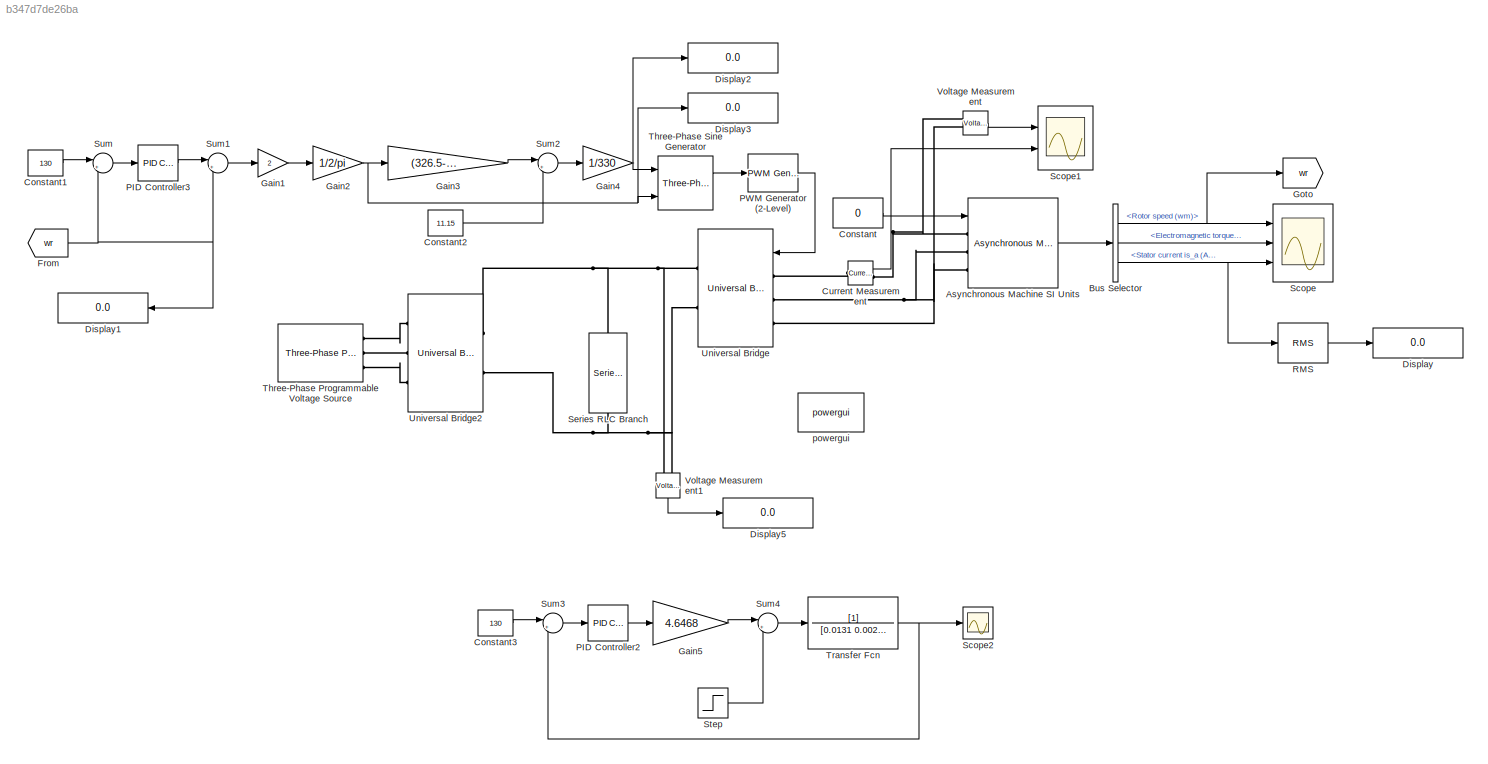
MODEL slx_b347d7de26ba
KIND model
CONFIG AbsTol = auto
CONFIG EnableMultiTasking = on
CONFIG FixedStep = auto
CONFIG MaxStep = 1e-4
CONFIG MinStep = auto
CONFIG RelTol = 1e-3
CONFIG SampleTimeConstraint = Unconstrained
CONFIG SolverName = ode23s
CONFIG StartTime = 0.0
CONFIG StopTime = 10
BLOCK [Reference] Asynchronous Machine SI Units  REF=spsAsynchronousMachineSIUnitsLib/Asynchronous Machine
SI Units
  Ports = [1, 1, 0, 0, 0, 3]
  SourceBlock = spsAsynchronousMachineSIUnitsLib/Asynchronous Machine\nSI Units
  SourceProductBaseCode = PS
  SourceType = Asynchronous Machine
BLOCK [BusSelector] Bus Selector
  OutputSignals = Mechanical.Rotor speed (wm),Mechanical.Electromagnetic torque Te (N*m),Stator measurements.Stator current is_a (A)
  Ports = [1, 3]
BLOCK [Constant] Constant
  Value = 0
BLOCK [Constant] Constant1
  Value = 130
BLOCK [Constant] Constant2
  Value = 11.15
BLOCK [Constant] Constant3
  Value = 130
BLOCK [Reference] Current Measurement  REF=spsCurrentMeasurementLib/Current Measurement
  Ports = [0, 1, 0, 0, 0, 1, 1]
  SourceBlock = spsCurrentMeasurementLib/Current Measurement
  SourceProductBaseCode = PS
  SourceType = Current Measurement
  UserDataPersistent = on
BLOCK [Display] Display
  Decimation = 1
  Ports = [1]
BLOCK [Display] Display1
  Decimation = 1
  Ports = [1]
BLOCK [Display] Display2
  Decimation = 1
  Ports = [1]
BLOCK [Display] Display3
  Decimation = 1
  Ports = [1]
BLOCK [Display] Display5
  Decimation = 1
  Ports = [1]
BLOCK [From] From
  GotoTag = wr
BLOCK [Gain] Gain1
  Gain = 2
BLOCK [Gain] Gain2
  Gain = 1/2/pi
BLOCK [Gain] Gain3
  Gain = (326.5-11.15)/50
BLOCK [Gain] Gain4
  Gain = 1/330
BLOCK [Gain] Gain5
  Gain = 4.6468
BLOCK [Goto] Goto
  GotoTag = wr
BLOCK [Reference] PID Controller2  REF=slpidlib/PID Controller
  Ports = [1, 1]
  SourceBlock = slpidlib/PID Controller
  SourceProductBaseCode = SL
  SourceType = PID 1dof
BLOCK [Reference] PID Controller3  REF=slpidlib/PID Controller
  Ports = [1, 1]
  SourceBlock = slpidlib/PID Controller
  SourceProductBaseCode = SL
  SourceType = PID 1dof
BLOCK [Reference] PWM Generator (2-Level)  REF=spsPWMGenerator2LevelLib/PWM Generator
(2-Level)
  Ports = [1, 1]
  SourceBlock = spsPWMGenerator2LevelLib/PWM Generator\n(2-Level)
  SourceProductBaseCode = PS
  SourceType = PWM Generator (2-Level)
BLOCK [Reference] RMS  REF=spsRMSLib/RMS
  Ports = [1, 1]
  SourceBlock = spsRMSLib/RMS
  SourceProductBaseCode = PS
  SourceType = RMS
BLOCK [Scope] Scope
  Floating = off
  NumInputPorts = 3
  Ports = [3]
  ScopeSpecificationString = Simulink.scopes.TimeScopeBlockCfg('CurrentConfiguration', extmgr.ConfigurationSet(extmgr.Configuration('Core','General UI',true,'FigureColor',[1 1 1]),extmgr.Configuration('Core','Source UI',true),extmgr.Configuration('Sources','WiredSimulink',true),extmgr.Configuration('Visuals','Time Domain',true,'SerializedDisplays',{struct('MinYLimReal','-26.82856','MaxYLimReal','241.45706','YLabelReal','','Mi...<+3722ch>
BLOCK [Scope] Scope1
  Floating = off
  NumInputPorts = 2
  Ports = [2]
  ScopeSpecificationString = Simulink.scopes.TimeScopeBlockCfg('CurrentConfiguration', extmgr.ConfigurationSet(extmgr.Configuration('Core','General UI',true,'FigureColor',[1 1 1]),extmgr.Configuration('Core','Source UI',true),extmgr.Configuration('Sources','WiredSimulink',true,'DataLoggingVariableName','ScopeData1'),extmgr.Configuration('Visuals','Time Domain',true,'SerializedDisplays',{struct('MinYLimReal','-825.13261','MaxY...<+2051ch>
BLOCK [Scope] Scope2
  Floating = off
  NumInputPorts = 1
  Ports = [1]
  ScopeSpecificationString = Simulink.scopes.TimeScopeBlockCfg('CurrentConfiguration', extmgr.ConfigurationSet(extmgr.Configuration('Core','General UI',true,'FigureColor',[1 1 1]),extmgr.Configuration('Core','Source UI',true),extmgr.Configuration('Sources','WiredSimulink',true,'DataLoggingVariableName','ScopeData2'),extmgr.Configuration('Visuals','Time Domain',true,'SerializedDisplays',{struct('MinYLimReal','14.9304','MaxYLim...<+1566ch>
BLOCK [Reference] Series RLC Branch  REF=spsSeriesRLCBranchLib/Series RLC Branch
  NameLocation = left
  Ports = [0, 0, 0, 0, 0, 1, 1]
  SourceBlock = spsSeriesRLCBranchLib/Series RLC Branch
  SourceProductBaseCode = PS
  SourceType = Series RLC Branch
BLOCK [Step] Step
  After = 10
  SampleTime = 0
  Time = 5
BLOCK [Sum] Sum
  Inputs = |+-
  Ports = [2, 1]
BLOCK [Sum] Sum1
  Inputs = |++
  Ports = [2, 1]
BLOCK [Sum] Sum2
  Inputs = |++
  Ports = [2, 1]
BLOCK [Sum] Sum3
  Inputs = |+-
  Ports = [2, 1]
BLOCK [Sum] Sum4
  Inputs = |+-
  Ports = [2, 1]
BLOCK [Reference] Three-Phase Programmable Voltage Source  REF=spsThreePhaseProgrammableVoltageSourceLib/Three-Phase
Programmable
Voltage Source
  Ports = [0, 0, 0, 0, 0, 1, 3]
  SourceBlock = spsThreePhaseProgrammableVoltageSourceLib/Three-Phase\nProgrammable\nVoltage Source
  SourceProductBaseCode = PS
  SourceType = Three-Phase Programmable Voltage Source
BLOCK [Reference] Three-Phase Sine Generator  REF=spsThreePhaseSineGeneratorLib/Three-Phase
Sine Generator
  Ports = [3, 2]
  SourceBlock = spsThreePhaseSineGeneratorLib/Three-Phase\nSine Generator
  SourceProductBaseCode = PS
  SourceType = Three-phase Sine Generator
BLOCK [TransferFcn] Transfer Fcn
  Denominator = [0.0131 0.002985]
BLOCK [Reference] Universal Bridge  REF=spsUniversalBridgeLib/Universal Bridge
  Ports = [1, 0, 0, 0, 0, 3, 2]
  SourceBlock = spsUniversalBridgeLib/Universal Bridge
  SourceProductBaseCode = PS
  SourceType = Universal Bridge
BLOCK [Reference] Universal Bridge2  REF=spsUniversalBridgeLib/Universal Bridge
  Ports = [0, 0, 0, 0, 0, 3, 2]
  SourceBlock = spsUniversalBridgeLib/Universal Bridge
  SourceProductBaseCode = PS
  SourceType = Universal Bridge
BLOCK [Reference] Voltage Measurement  REF=spsVoltageMeasurementLib/Voltage Measurement
  Ports = [0, 1, 0, 0, 0, 2]
  SourceBlock = spsVoltageMeasurementLib/Voltage Measurement
  SourceProductBaseCode = PS
  SourceType = Voltage Measurement
  UserDataPersistent = on
BLOCK [Reference] Voltage Measurement1  REF=spsVoltageMeasurementLib/Voltage Measurement
  NameLocation = left
  Ports = [0, 1, 0, 0, 0, 2]
  SourceBlock = spsVoltageMeasurementLib/Voltage Measurement
  SourceProductBaseCode = PS
  SourceType = Voltage Measurement
  UserDataPersistent = on
BLOCK [Reference] powergui  REF=spspowerguiLib/powergui
  Ports = []
  Priority = 1
  SourceBlock = spspowerguiLib/powergui
  SourceProductBaseCode = PS
  SourceType = PSB option menu block
LINE Asynchronous Machine SI Units:1 -> Bus Selector:1
NET Bus Selector:1 -> Goto:1, Scope:1
LINE Bus Selector:2 -> Scope:2
NET Bus Selector:3 -> RMS:1, Scope:3
LINE Constant1:1 -> Sum:1
LINE Constant2:1 -> Sum2:2
LINE Constant3:1 -> Sum3:1
LINE Constant:1 -> Asynchronous Machine SI Units:1
LINE Current Measurement:1 -> Scope1:2
NET From:1 -> Display1:1, Sum1:2, Sum:2
LINE Gain1:1 -> Gain2:1
NET Gain2:1 -> Display3:1, Gain3:1, Three-Phase Sine Generator:3
LINE Gain3:1 -> Sum2:1
NET Gain4:1 -> Display2:1, Three-Phase Sine Generator:1
LINE Gain5:1 -> Sum4:1
LINE PID Controller2:1 -> Gain5:1
LINE PID Controller3:1 -> Sum1:1
LINE PWM Generator (2-Level):1 -> Universal Bridge:1
LINE RMS:1 -> Display:1
LINE Step:1 -> Sum4:2
LINE Sum1:1 -> Gain1:1
LINE Sum2:1 -> Gain4:1
LINE Sum3:1 -> PID Controller2:1
LINE Sum4:1 -> Transfer Fcn:1
LINE Sum:1 -> PID Controller3:1
LINE Three-Phase Sine Generator:1 -> PWM Generator (2-Level):1
NET Transfer Fcn:1 -> Scope2:1, Sum3:2
LINE Voltage Measurement1:1 -> Display5:1
LINE Voltage Measurement:1 -> Scope1:1
PNET net1: Asynchronous Machine SI Units:LConn1 -- Current Measurement:RConn1 -- Voltage Measurement:LConn1
PNET net2: Asynchronous Machine SI Units:LConn2 -- Universal Bridge:LConn2 -- Voltage Measurement:LConn2
PLINE Asynchronous Machine SI Units:LConn3 -- Universal Bridge:LConn3
PLINE Current Measurement:LConn1 -- Universal Bridge:LConn1
PNET net3: Series RLC Branch:LConn1 -- Universal Bridge2:RConn1 -- Universal Bridge:RConn1 -- Voltage Measurement1:LConn1
PNET net4: Series RLC Branch:RConn1 -- Universal Bridge2:RConn2 -- Universal Bridge:RConn2 -- Voltage Measurement1:LConn2
PLINE Three-Phase Programmable Voltage Source:RConn1 -- Universal Bridge2:LConn1
PLINE Three-Phase Programmable Voltage Source:RConn2 -- Universal Bridge2:LConn2
PLINE Three-Phase Programmable Voltage Source:RConn3 -- Universal Bridge2:LConn3
note: NET lines group one-source signal fan-out (src -> all destinations, sorted); 1:1 wires keep LINE; PNET lines group multi-terminal physical nets as a canonical sorted terminal list (undirected conserving connections); 2-terminal nets keep the pairwise PLINE form
